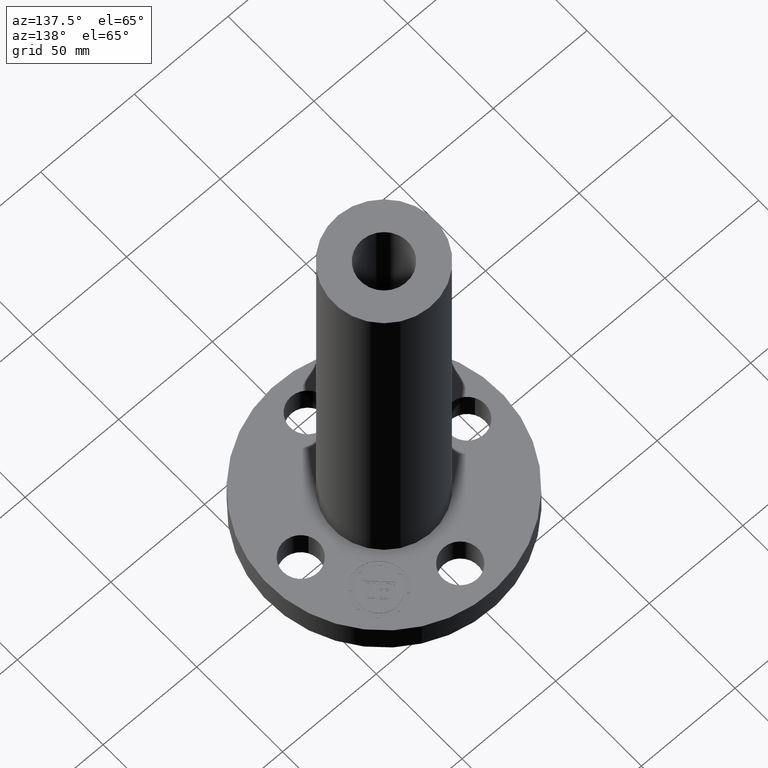
[diagram: clean part render]
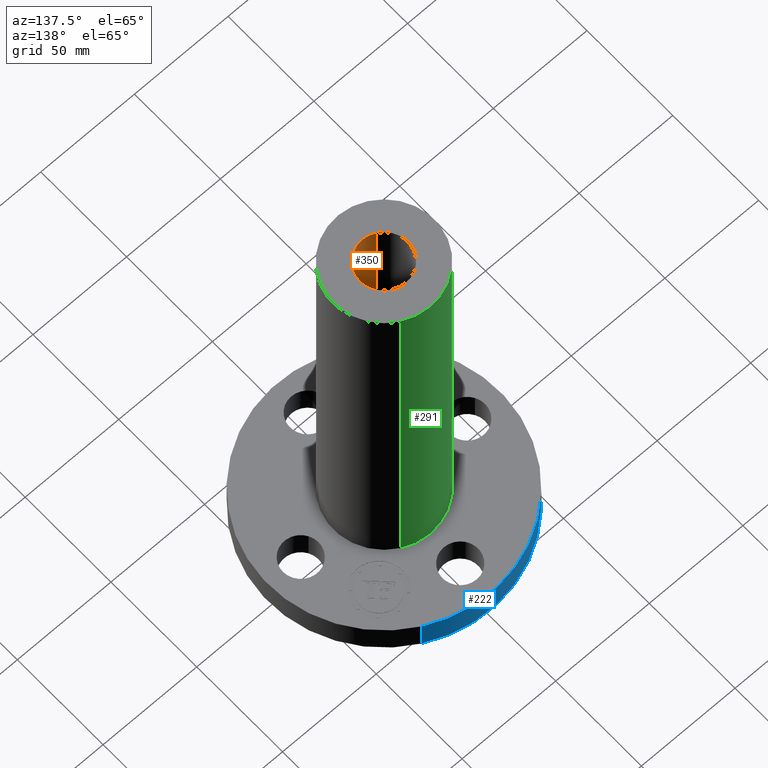
[diagram: same view with three faces highlighted in distinct colors, each labeled with its STEP entity id]
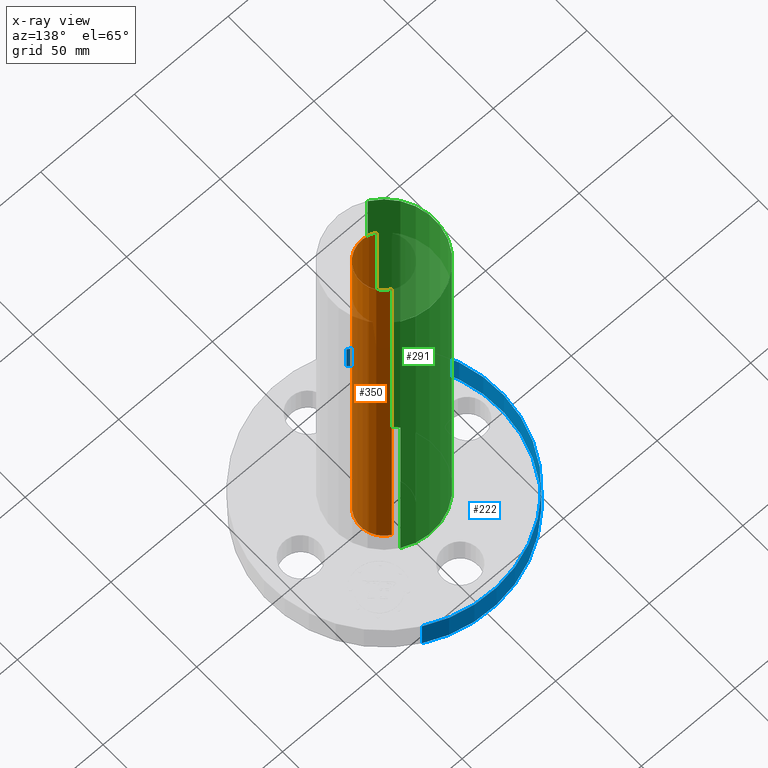
[diagram: x-ray of the same camera — body ghosted, the three highlighted faces saturated]
A machine part, auxiliary view with three faces highlighted in distinct colors.
The next image is the same camera in x-ray (body ghosted, the three faces saturated) — at least one of them is partly hidden behind the body in this view.
Their STEP definitions:

[orange] entity #350 — the highlighted cylindrical surface (edge-blend (fillet) strip) has radius 12.7 mm, axis along (0, 0, -1).
#312=AXIS2_PLACEMENT_3D('Circle Axis2P3D',#310,#311,$) ;
#323=AXIS2_PLACEMENT_3D('Cylinder Axis2P3D',#320,#321,#322) ;
#334=AXIS2_PLACEMENT_3D('Circle Axis2P3D',#332,#333,$) ;
#305=CARTESIAN_POINT('Vertex',(-0.239712769303,-0.438791280947,8.93750000004)) ;
#307=CARTESIAN_POINT('Vertex',(0.239712769303,0.438791280947,8.93750000004)) ;
#310=CARTESIAN_POINT('Axis2P3D Location',(0.,0.,8.93750000004)) ;
#320=CARTESIAN_POINT('Axis2P3D Location',(0.,0.,4.43750000002)) ;
#325=CARTESIAN_POINT('Line Origine',(0.239712769303,0.438791280947,4.43750000002)) ;
#329=CARTESIAN_POINT('Vertex',(0.239712769303,0.438791280947,-0.0625000000002)) ;
#332=CARTESIAN_POINT('Axis2P3D Location',(0.,0.,-0.0625000000002)) ;
#336=CARTESIAN_POINT('Vertex',(-0.239712769303,-0.438791280947,-0.0625000000002)) ;
#339=CARTESIAN_POINT('Line Origine',(-0.239712769303,-0.438791280947,4.43750000002)) ;
#311=DIRECTION('Axis2P3D Direction',(0.,0.,-0.0393700787402)) ;
#321=DIRECTION('Axis2P3D Direction',(0.,0.,-0.0393700787402)) ;
#322=DIRECTION('Axis2P3D XDirection',(-0.0188750212049,-0.0345504945626,0.)) ;
#326=DIRECTION('Vector Direction',(0.,0.,-0.0393700787402)) ;
#333=DIRECTION('Axis2P3D Direction',(0.,0.,-0.0393700787402)) ;
#340=DIRECTION('Vector Direction',(0.,0.,-0.0393700787402)) ;
#327=VECTOR('Line Direction',#326,0.0393700787402) ;
#341=VECTOR('Line Direction',#340,0.0393700787402) ;
#345=ORIENTED_EDGE('',*,*,#314,.F.) ;
#346=ORIENTED_EDGE('',*,*,#331,.T.) ;
#347=ORIENTED_EDGE('',*,*,#338,.T.) ;
#348=ORIENTED_EDGE('',*,*,#343,.F.) ;
#350=ADVANCED_FACE('PartBody',(#349),#324,.F.) ;
#313=CIRCLE('generated circle',#312,0.500000000002) ;
#335=CIRCLE('generated circle',#334,0.500000000002) ;
#324=CYLINDRICAL_SURFACE('generated cylinder',#323,0.500000000002) ;
#314=EDGE_CURVE('',#308,#306,#313,.T.) ;
#331=EDGE_CURVE('',#308,#330,#328,.T.) ;
#338=EDGE_CURVE('',#330,#337,#335,.T.) ;
#343=EDGE_CURVE('',#306,#337,#342,.T.) ;
#344=EDGE_LOOP('',(#345,#346,#347,#348)) ;
#349=FACE_OUTER_BOUND('',#344,.T.) ;
#328=LINE('Line',#325,#327) ;
#342=LINE('Line',#339,#341) ;
#306=VERTEX_POINT('',#305) ;
#308=VERTEX_POINT('',#307) ;
#330=VERTEX_POINT('',#329) ;
#337=VERTEX_POINT('',#336) ;

[blue] entity #222 — the highlighted cylindrical surface (partial cylindrical patch) has radius 61.976 mm, axis along (0, 0, -1).
#82=AXIS2_PLACEMENT_3D('Circle Axis2P3D',#80,#81,$) ;
#195=AXIS2_PLACEMENT_3D('Cylinder Axis2P3D',#192,#193,#194) ;
#206=AXIS2_PLACEMENT_3D('Circle Axis2P3D',#204,#205,$) ;
#80=CARTESIAN_POINT('Axis2P3D Location',(0.,0.,0.)) ;
#84=CARTESIAN_POINT('Vertex',(-1.1697983142,-2.14130145102,0.)) ;
#86=CARTESIAN_POINT('Vertex',(1.1697983142,2.14130145102,0.)) ;
#192=CARTESIAN_POINT('Axis2P3D Location',(0.,0.,4.43750000002)) ;
#197=CARTESIAN_POINT('Line Origine',(-1.1697983142,-2.14130145102,0.313750000001)) ;
#201=CARTESIAN_POINT('Vertex',(-1.1697983142,-2.14130145102,0.627500000003)) ;
#204=CARTESIAN_POINT('Axis2P3D Location',(0.,0.,0.627500000003)) ;
#208=CARTESIAN_POINT('Vertex',(1.1697983142,2.14130145102,0.627500000003)) ;
#211=CARTESIAN_POINT('Line Origine',(1.1697983142,2.14130145102,0.313750000001)) ;
#81=DIRECTION('Axis2P3D Direction',(0.,0.,-0.0393700787402)) ;
#193=DIRECTION('Axis2P3D Direction',(0.,0.,-0.0393700787402)) ;
#194=DIRECTION('Axis2P3D XDirection',(0.0188750212049,0.0345504945626,0.)) ;
#198=DIRECTION('Vector Direction',(0.,0.,-0.0393700787402)) ;
#205=DIRECTION('Axis2P3D Direction',(0.,0.,-0.0393700787402)) ;
#212=DIRECTION('Vector Direction',(0.,0.,-0.0393700787402)) ;
#199=VECTOR('Line Direction',#198,0.0393700787402) ;
#213=VECTOR('Line Direction',#212,0.0393700787402) ;
#217=ORIENTED_EDGE('',*,*,#88,.F.) ;
#218=ORIENTED_EDGE('',*,*,#203,.T.) ;
#219=ORIENTED_EDGE('',*,*,#210,.T.) ;
#220=ORIENTED_EDGE('',*,*,#215,.F.) ;
#222=ADVANCED_FACE('PartBody',(#221),#196,.T.) ;
#83=CIRCLE('generated circle',#82,2.44000000001) ;
#207=CIRCLE('generated circle',#206,2.44000000001) ;
#196=CYLINDRICAL_SURFACE('generated cylinder',#195,2.44000000001) ;
#88=EDGE_CURVE('',#85,#87,#83,.T.) ;
#203=EDGE_CURVE('',#85,#202,#200,.F.) ;
#210=EDGE_CURVE('',#202,#209,#207,.T.) ;
#215=EDGE_CURVE('',#87,#209,#214,.F.) ;
#216=EDGE_LOOP('',(#217,#218,#219,#220)) ;
#221=FACE_OUTER_BOUND('',#216,.T.) ;
#200=LINE('Line',#197,#199) ;
#214=LINE('Line',#211,#213) ;
#85=VERTEX_POINT('',#84) ;
#87=VERTEX_POINT('',#86) ;
#202=VERTEX_POINT('',#201) ;
#209=VERTEX_POINT('',#208) ;

[green] entity #291 — the highlighted cylindrical surface (partial cylindrical patch) has radius 26.924 mm, axis along (0, 0, -1).
#238=AXIS2_PLACEMENT_3D('Cylinder Axis2P3D',#235,#236,#237) ;
#277=AXIS2_PLACEMENT_3D('Circle Axis2P3D',#275,#276,$) ;
#282=AXIS2_PLACEMENT_3D('Circle Axis2P3D',#280,#281,$) ;
#235=CARTESIAN_POINT('Axis2P3D Location',(0.,0.,4.43750000002)) ;
#244=CARTESIAN_POINT('Vertex',(0.508191070922,0.930237515608,0.627500000003)) ;
#246=CARTESIAN_POINT('Vertex',(-0.508191070922,-0.930237515608,0.627500000003)) ;
#249=CARTESIAN_POINT('Line Origine',(0.508191070922,0.930237515608,4.78250000002)) ;
#253=CARTESIAN_POINT('Vertex',(0.508191070922,0.930237515608,8.93750000004)) ;
#260=CARTESIAN_POINT('Vertex',(-0.508191070922,-0.930237515608,8.93750000004)) ;
#263=CARTESIAN_POINT('Line Origine',(-0.508191070922,-0.930237515608,4.78250000002)) ;
#275=CARTESIAN_POINT('Axis2P3D Location',(0.,0.,0.627500000003)) ;
#280=CARTESIAN_POINT('Axis2P3D Location',(0.,0.,8.93750000004)) ;
#236=DIRECTION('Axis2P3D Direction',(0.,0.,-0.0393700787402)) ;
#237=DIRECTION('Axis2P3D XDirection',(-0.0188750212049,-0.0345504945626,0.)) ;
#250=DIRECTION('Vector Direction',(0.,0.,-0.0393700787402)) ;
#264=DIRECTION('Vector Direction',(0.,0.,-0.0393700787402)) ;
#276=DIRECTION('Axis2P3D Direction',(0.,0.,-0.0393700787402)) ;
#281=DIRECTION('Axis2P3D Direction',(0.,0.,-0.0393700787402)) ;
#251=VECTOR('Line Direction',#250,0.0393700787402) ;
#265=VECTOR('Line Direction',#264,0.0393700787402) ;
#286=ORIENTED_EDGE('',*,*,#279,.F.) ;
#287=ORIENTED_EDGE('',*,*,#267,.T.) ;
#288=ORIENTED_EDGE('',*,*,#284,.T.) ;
#289=ORIENTED_EDGE('',*,*,#255,.F.) ;
#291=ADVANCED_FACE('PartBody',(#290),#239,.T.) ;
#278=CIRCLE('generated circle',#277,1.06) ;
#283=CIRCLE('generated circle',#282,1.06) ;
#239=CYLINDRICAL_SURFACE('generated cylinder',#238,1.06) ;
#255=EDGE_CURVE('',#245,#254,#252,.F.) ;
#267=EDGE_CURVE('',#247,#261,#266,.F.) ;
#279=EDGE_CURVE('',#247,#245,#278,.T.) ;
#284=EDGE_CURVE('',#261,#254,#283,.T.) ;
#285=EDGE_LOOP('',(#286,#287,#288,#289)) ;
#290=FACE_OUTER_BOUND('',#285,.T.) ;
#252=LINE('Line',#249,#251) ;
#266=LINE('Line',#263,#265) ;
#245=VERTEX_POINT('',#244) ;
#247=VERTEX_POINT('',#246) ;
#254=VERTEX_POINT('',#253) ;
#261=VERTEX_POINT('',#260) ;